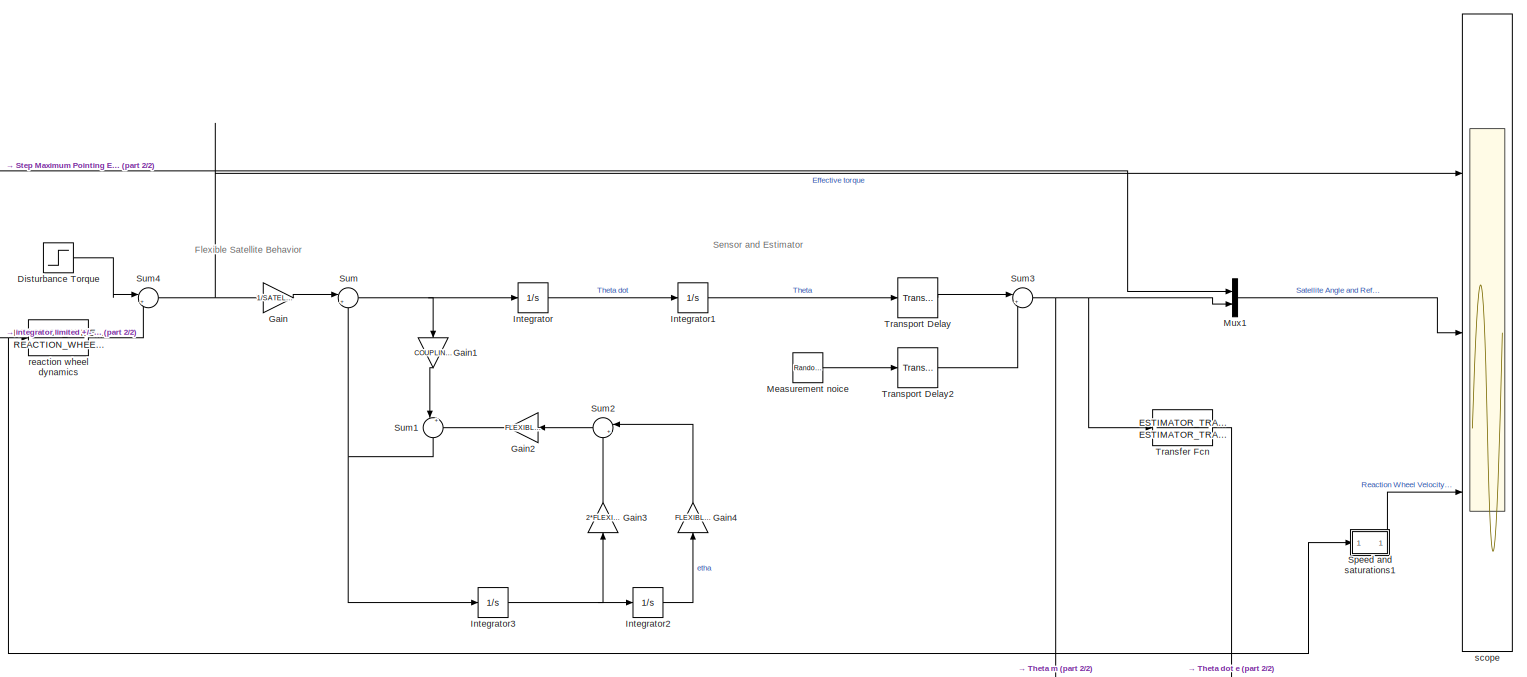
[diagram: root canvas - part 1/2, right side, full height]
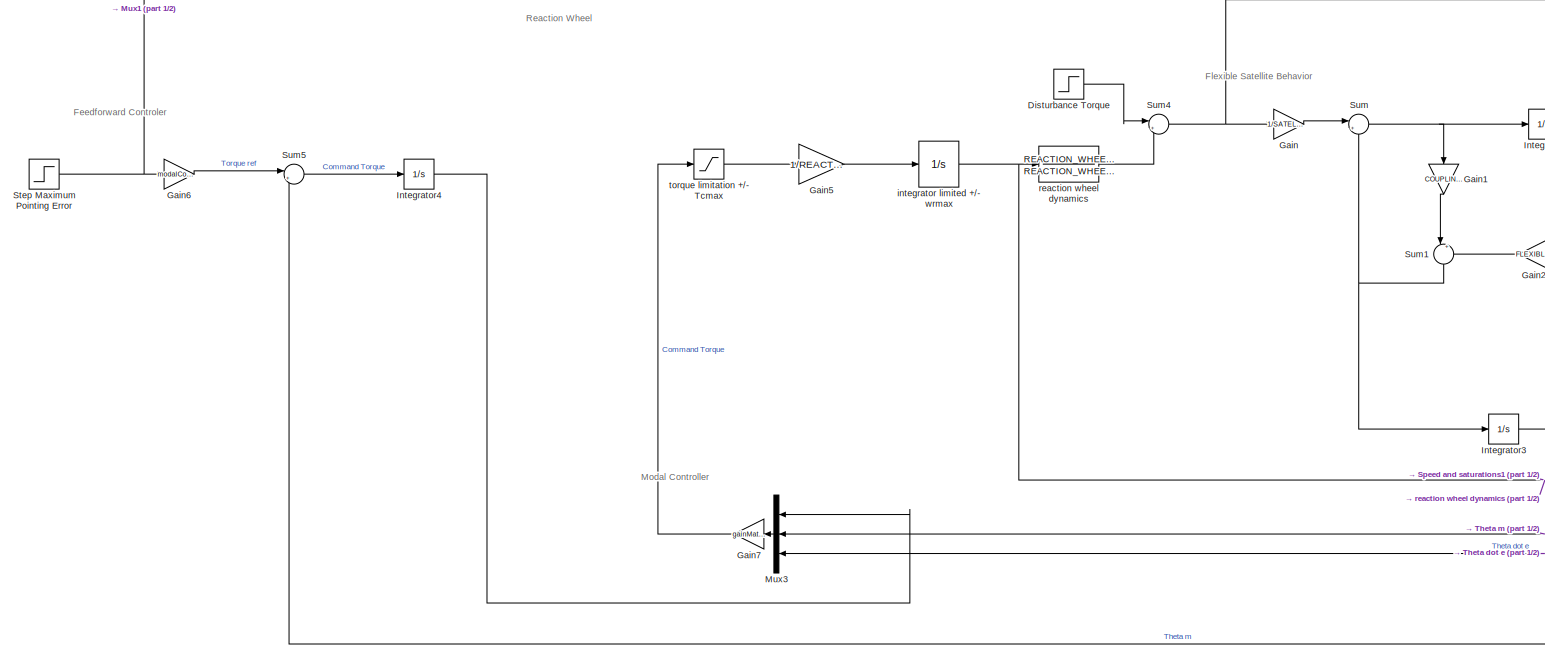
[diagram: root canvas - part 2/2, left side, full height]
MODEL slx_9678060547ab
KIND model
CONFIG AbsTol = auto
CONFIG EnableMultiTasking = off
CONFIG FixedStep = auto
CONFIG MaxStep = auto
CONFIG MinStep = auto
CONFIG RelTol = 1e-3
CONFIG SampleTimeConstraint = Unconstrained
CONFIG SolverName = VariableStepAuto
CONFIG StartTime = 0.0
CONFIG StopTime = 200
BLOCK [Step] Disturbance Torque
  After = DISTURBANCE_TORQUE
  SampleTime = 0
  Time = DISTURBANCE_TORQUE_DELAY
BLOCK [Gain] Gain
  Gain = 1/SATELLITE_INERTIA
BLOCK [Gain] Gain1
  Gain = COUPLING_COEFFICIENT
  NameLocation = left
BLOCK [Gain] Gain2
  Gain = FLEXIBLE_MODE_FREQUENCY
  NameLocation = top
BLOCK [Gain] Gain3
  Gain = 2*FLEXIBLE_MODE_DAMPING_RATIO
  NameLocation = right
BLOCK [Gain] Gain4
  Gain = FLEXIBLE_MODE_FREQUENCY
  NameLocation = right
BLOCK [Gain] Gain5
  Gain = 1/REACTION_WHEEL_INERTIA
BLOCK [Gain] Gain6
  Gain = modalControlWithIntegratorFeedForwardGain
BLOCK [Gain] Gain7
  Gain = gainMatrixStateFeedBackWithIntegrator
  Multiplication = Matrix(K*u)
  NameLocation = top
BLOCK [Integrator] Integrator
  Ports = [1, 1]
BLOCK [Integrator] Integrator1
  Ports = [1, 1]
BLOCK [Integrator] Integrator2
  InitialCondition = INITIAL_CONDITION_ON_STATE
  Ports = [1, 1]
BLOCK [Integrator] Integrator3
  Ports = [1, 1]
BLOCK [Integrator] Integrator4
  Ports = [1, 1]
BLOCK [RandomNumber] Measurement noice
  SampleTime = 0.01
  Variance = MEASUREMENT_NOISE_VARIANCE
BLOCK [Mux] Mux1
  DisplayOption = bar
  Inputs = 2
  Ports = [2, 1]
BLOCK [Mux] Mux3
  DisplayOption = bar
  Inputs = 3
  NameLocation = top
  Ports = [3, 1]
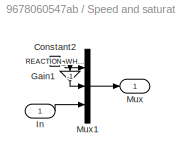
BLOCK [SubSystem] Speed and saturations1
  Ports = [1, 1]
  RequestExecContextInheritance = off
BLOCK [Constant] Speed and saturations1/Constant2
  Value = REACTION_WHEEL_VELOCITY_SATURATION
BLOCK [Gain] Speed and saturations1/Gain1
  Gain = -1
  NameLocation = left
BLOCK [Inport] Speed and saturations1/In
BLOCK [Outport] Speed and saturations1/Mux
BLOCK [Mux] Speed and saturations1/Mux1
  DisplayOption = bar
  Inputs = 3
  Ports = [3, 1]
BLOCK [Step] Step Maximum Pointing Error
  After = 5.5*2*pi/360
  SampleTime = 0
  Time = 0
BLOCK [Sum] Sum
  Inputs = |++
  Ports = [2, 1]
BLOCK [Sum] Sum1
  Inputs = |+-
  NameLocation = left
  Ports = [2, 1]
BLOCK [Sum] Sum2
  Inputs = |++
  NameLocation = top
  Ports = [2, 1]
BLOCK [Sum] Sum3
  Inputs = |++
  Ports = [2, 1]
BLOCK [Sum] Sum4
  Inputs = |++
  Ports = [2, 1]
BLOCK [Sum] Sum5
  Inputs = |+-
  Ports = [2, 1]
BLOCK [TransferFcn] Transfer Fcn
  Denominator = ESTIMATOR_TRANSFER_FUNCTION_DENOMINATOR
  Numerator = ESTIMATOR_TRANSFER_FUNCTION_NUMERATOR
BLOCK [TransportDelay] Transport Delay
  DelayTime = MEASUREMENT_DELAY
  Ports = [1, 1]
BLOCK [TransportDelay] Transport Delay2
  DelayTime = STAR_TRACKER_NOISE_DELAY
  Ports = [1, 1]
BLOCK [Integrator] integrator limited +//- wrmax
  LimitOutput = on
  LowerSaturationLimit = -REACTION_WHEEL_VELOCITY_SATURATION
  Ports = [1, 1]
  UpperSaturationLimit = REACTION_WHEEL_VELOCITY_SATURATION
BLOCK [TransferFcn] reaction wheel dynamics
  Denominator = REACTION_WHEEL_DYNAMICS_DENOMINATOR
  Numerator = REACTION_WHEEL_DYNAMICS_NUMERATOR
BLOCK [Scope] scope
  Floating = off
  NumInputPorts = 3
  Ports = [3]
  ScopeSpecificationString = Simulink.scopes.TimeScopeBlockCfg('CurrentConfiguration', extmgr.ConfigurationSet(extmgr.Configuration('Core','General UI',true),extmgr.Configuration('Core','Source UI',true),extmgr.Configuration('Sources','WiredSimulink',true),extmgr.Configuration('Visuals','Time Domain',true,'SerializedDisplays',{struct('MinYLimReal','-0.05739','MaxYLimReal','0.05839','YLabelReal','','MinYLimMag','0.00000','MaxY...<+2981ch>
BLOCK [Saturate] torque limitation +//- Tcmax
  LowerLimit = -COMMANDED_TORQUE_SATURATION
  UpperLimit = COMMANDED_TORQUE_SATURATION
ANNOTATION (root): Feedforward Controler
ANNOTATION (root): Flexible Satellite Behavior
ANNOTATION (root): Modal Controller
ANNOTATION (root): Reaction Wheel
ANNOTATION (root): Sensor and Estimator
LINE Disturbance Torque:1 -> Sum4:1
LINE Gain1:1 -> Sum1:1
LINE Gain2:1 -> Sum1:2
LINE Gain3:1 -> Sum2:2
LINE Gain4:1 -> Sum2:1
LINE Gain5:1 -> integrator limited +//- wrmax:1
LINE Gain6:1 -> Sum5:1
LINE Gain7:1 -> torque limitation +//- Tcmax:1
LINE Gain:1 -> Sum:1
LINE Integrator1:1 -> Transport Delay:1
LINE Integrator2:1 -> Gain4:1
NET Integrator3:1 -> Gain3:1, Integrator2:1
LINE Integrator4:1 -> Mux3:1
LINE Integrator:1 -> Integrator1:1
LINE Measurement noice:1 -> Transport Delay2:1
LINE Mux1:1 -> scope:2
LINE Mux3:1 -> Gain7:1
NET Speed and saturations1/Constant2:1 -> Speed and saturations1/Gain1:1, Speed and saturations1/Mux1:1
LINE Speed and saturations1/Gain1:1 -> Speed and saturations1/Mux1:2
LINE Speed and saturations1/In:1 -> Speed and saturations1/Mux1:3
LINE Speed and saturations1/Mux1:1 -> Speed and saturations1/Mux:1
LINE Speed and saturations1:1 -> scope:3
NET Step Maximum Pointing Error:1 -> Gain6:1, Mux1:1
NET Sum1:1 -> Integrator3:1, Sum:2
LINE Sum2:1 -> Gain2:1
NET Sum3:1 -> Mux1:2, Mux3:2, Sum5:2, Transfer Fcn:1
NET Sum4:1 -> Gain:1, scope:1
LINE Sum5:1 -> Integrator4:1
NET Sum:1 -> Gain1:1, Integrator:1
LINE Transfer Fcn:1 -> Mux3:3
LINE Transport Delay2:1 -> Sum3:2
LINE Transport Delay:1 -> Sum3:1
NET integrator limited +//- wrmax:1 -> Speed and saturations1:1, reaction wheel dynamics:1
LINE reaction wheel dynamics:1 -> Sum4:2
LINE torque limitation +//- Tcmax:1 -> Gain5:1
note: NET lines group one-source signal fan-out (src -> all destinations, sorted); 1:1 wires keep LINE
